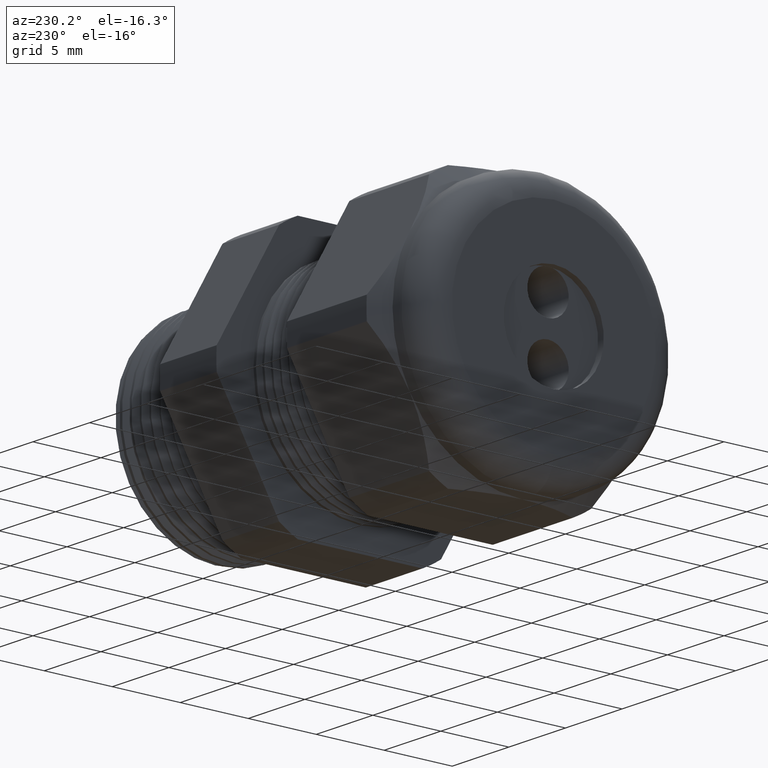
[diagram: clean part render]
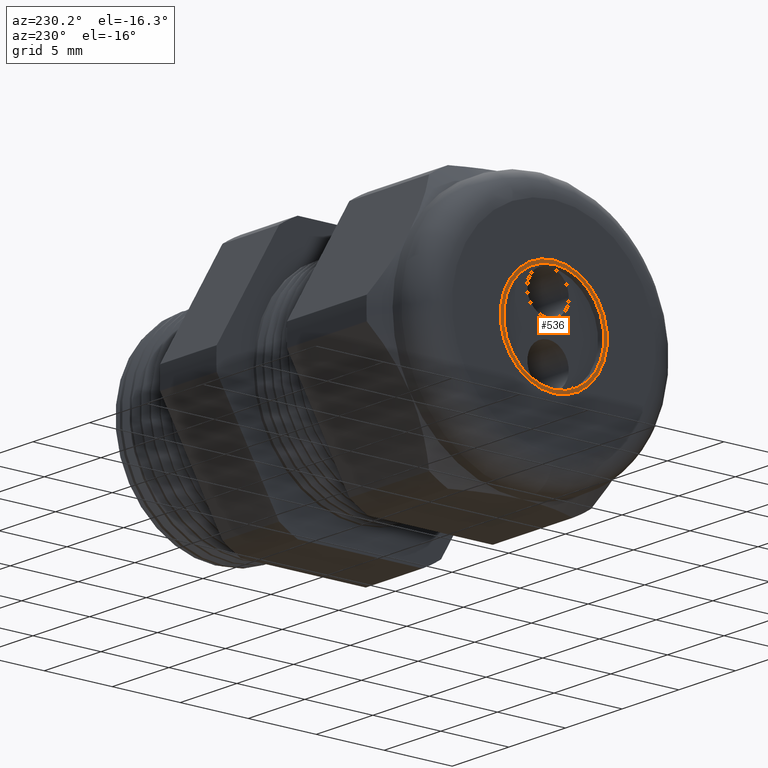
[diagram: same view with one face highlighted and labeled with its STEP entity id]
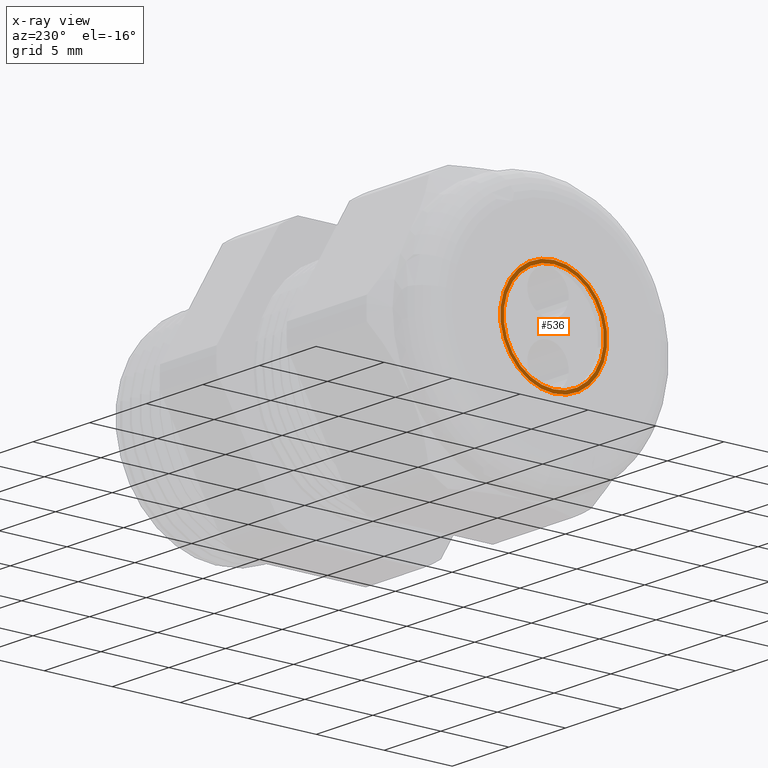
[diagram: x-ray of the same camera — body ghosted, the highlighted face saturated]
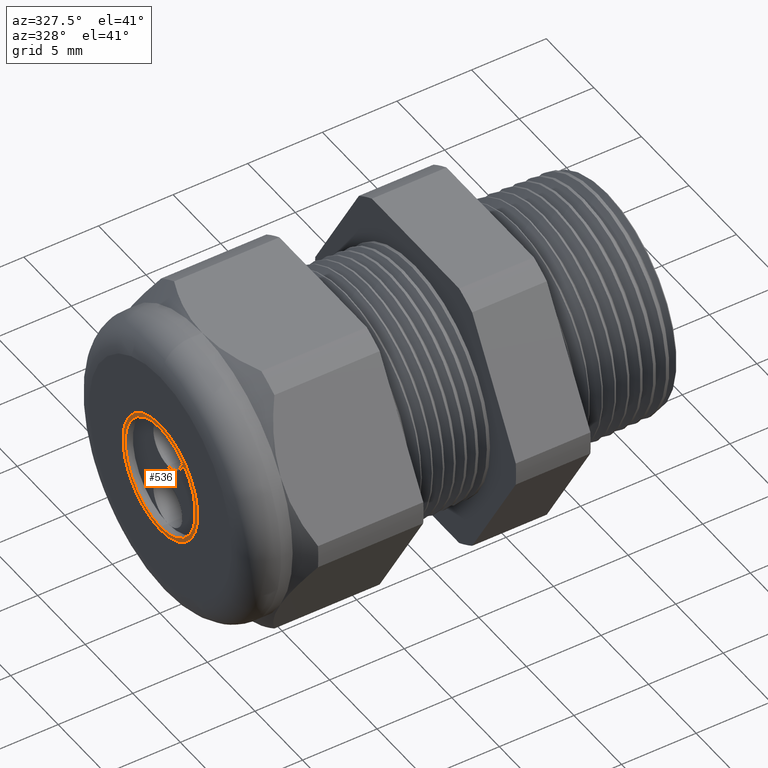
[diagram: same view with one face highlighted and labeled with its STEP entity id]
A machine part, auxiliary view. The second image highlights one B-rep face of the part: STEP entity #536.
The next image is the same camera in x-ray: the body ghosted, the highlighted face saturated — about 0% of this face is hidden behind the body in this view.
A second angle (auxiliary view) of the same face is appended — the face is thin or edge-on in the first view.
In plain terms, the highlighted planar face has unit normal (-1, 0, 0).
Its self-contained STEP definition (entity closure, byte-faithful):
#536 = ADVANCED_FACE ( 'NONE', ( #2383, #2382 ), #2381, .T. ) ;
#537 = EDGE_LOOP ( 'NONE', ( #538, #540 ) ) ;
#538 = ORIENTED_EDGE ( 'NONE', *, *, #539, .F. ) ;
#539 = EDGE_CURVE ( 'NONE', #568, #565, #2376, .T. ) ;
#540 = ORIENTED_EDGE ( 'NONE', *, *, #567, .F. ) ;
#565 = VERTEX_POINT ( 'NONE', #2456 ) ;
#567 = EDGE_CURVE ( 'NONE', #565, #568, #2455, .T. ) ;
#568 = VERTEX_POINT ( 'NONE', #2450 ) ;
#579 = VERTEX_POINT ( 'NONE', #2428 ) ;
#587 = EDGE_CURVE ( 'NONE', #588, #579, #2484, .T. ) ;
#588 = VERTEX_POINT ( 'NONE', #2475 ) ;
#613 = EDGE_LOOP ( 'NONE', ( #614, #615 ) ) ;
#614 = ORIENTED_EDGE ( 'NONE', *, *, #587, .T. ) ;
#615 = ORIENTED_EDGE ( 'NONE', *, *, #640, .T. ) ;
#640 = EDGE_CURVE ( 'NONE', #579, #588, #2573, .T. ) ;
#2372 = DIRECTION ( 'NONE',  ( 0.0000000000000000000, 0.0000000000000000000, 1.000000000000000000 ) ) ;
#2373 = DIRECTION ( 'NONE',  ( -1.000000000000000000, 0.0000000000000000000, 0.0000000000000000000 ) ) ;
#2374 = CARTESIAN_POINT ( 'NONE',  ( -1.179999999999999900, 0.0000000000000000000, 0.0000000000000000000 ) ) ;
#2375 = AXIS2_PLACEMENT_3D ( 'NONE', #2374, #2373, #2372 ) ;
#2376 = CIRCLE ( 'NONE', #2375, 0.1449999999999999900 ) ;
#2377 = DIRECTION ( 'NONE',  ( 0.0000000000000000000, 0.0000000000000000000, 1.000000000000000000 ) ) ;
#2378 = DIRECTION ( 'NONE',  ( -1.000000000000000000, 0.0000000000000000000, 0.0000000000000000000 ) ) ;
#2379 = CARTESIAN_POINT ( 'NONE',  ( -1.179999999999999900, 0.0000000000000000000, 0.0000000000000000000 ) ) ;
#2380 = AXIS2_PLACEMENT_3D ( 'NONE', #2379, #2378, #2377 ) ;
#2381 = PLANE ( 'NONE',  #2380 ) ;
#2382 = FACE_OUTER_BOUND ( 'NONE', #613, .T. ) ;
#2383 = FACE_BOUND ( 'NONE', #537, .T. ) ;
#2428 = CARTESIAN_POINT ( 'NONE',  ( -1.179999999999999900, 1.898202538678397000E-017, -0.1550000000000000000 ) ) ;
#2450 = CARTESIAN_POINT ( 'NONE',  ( -1.179999999999999900, 0.0000000000000000000, 0.1449999999999999900 ) ) ;
#2451 = DIRECTION ( 'NONE',  ( 0.0000000000000000000, 0.0000000000000000000, 1.000000000000000000 ) ) ;
#2452 = DIRECTION ( 'NONE',  ( -1.000000000000000000, 0.0000000000000000000, 0.0000000000000000000 ) ) ;
#2453 = CARTESIAN_POINT ( 'NONE',  ( -1.179999999999999900, 0.0000000000000000000, 0.0000000000000000000 ) ) ;
#2454 = AXIS2_PLACEMENT_3D ( 'NONE', #2453, #2452, #2451 ) ;
#2455 = CIRCLE ( 'NONE', #2454, 0.1449999999999999900 ) ;
#2456 = CARTESIAN_POINT ( 'NONE',  ( -1.179999999999999900, 1.775737858763661900E-017, -0.1449999999999999900 ) ) ;
#2475 = CARTESIAN_POINT ( 'NONE',  ( -1.179999999999999900, 0.0000000000000000000, 0.1550000000000000000 ) ) ;
#2476 = DIRECTION ( 'NONE',  ( 0.0000000000000000000, 0.0000000000000000000, 1.000000000000000000 ) ) ;
#2477 = DIRECTION ( 'NONE',  ( -1.000000000000000000, 0.0000000000000000000, 0.0000000000000000000 ) ) ;
#2478 = CARTESIAN_POINT ( 'NONE',  ( -1.179999999999999900, 0.0000000000000000000, 0.0000000000000000000 ) ) ;
#2479 = AXIS2_PLACEMENT_3D ( 'NONE', #2478, #2477, #2476 ) ;
#2484 = CIRCLE ( 'NONE', #2479, 0.1550000000000000000 ) ;
#2569 = DIRECTION ( 'NONE',  ( 0.0000000000000000000, 0.0000000000000000000, 1.000000000000000000 ) ) ;
#2570 = DIRECTION ( 'NONE',  ( -1.000000000000000000, 0.0000000000000000000, 0.0000000000000000000 ) ) ;
#2571 = CARTESIAN_POINT ( 'NONE',  ( -1.179999999999999900, 0.0000000000000000000, 0.0000000000000000000 ) ) ;
#2572 = AXIS2_PLACEMENT_3D ( 'NONE', #2571, #2570, #2569 ) ;
#2573 = CIRCLE ( 'NONE', #2572, 0.1550000000000000000 ) ;